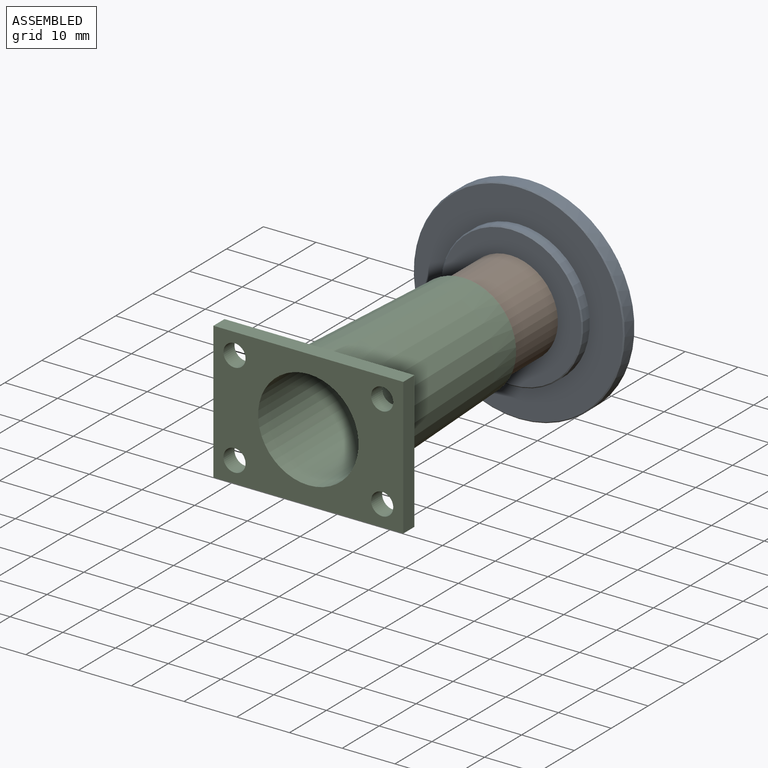
[diagram: assembled view]
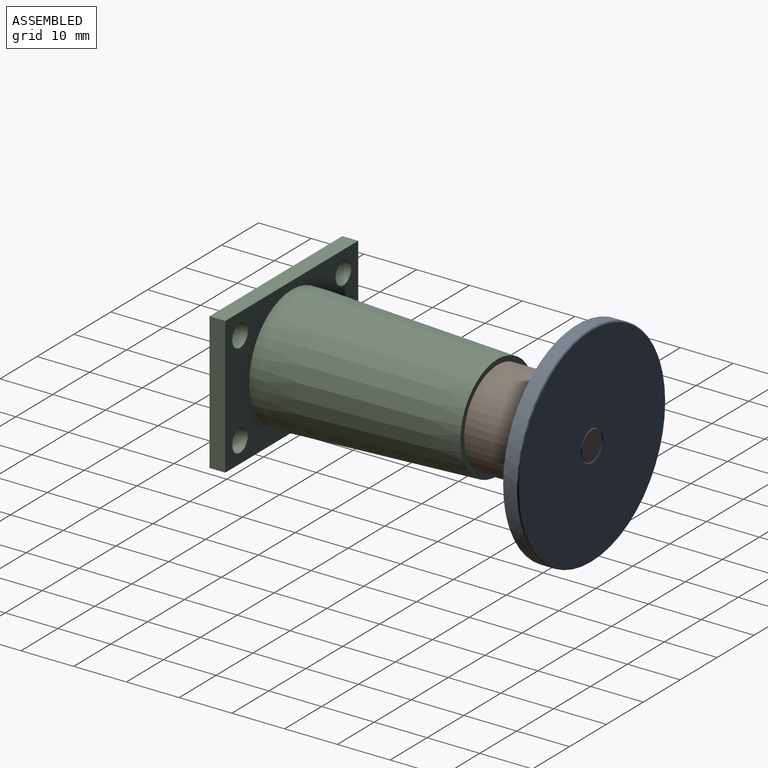
[diagram: assembled view, second angle]
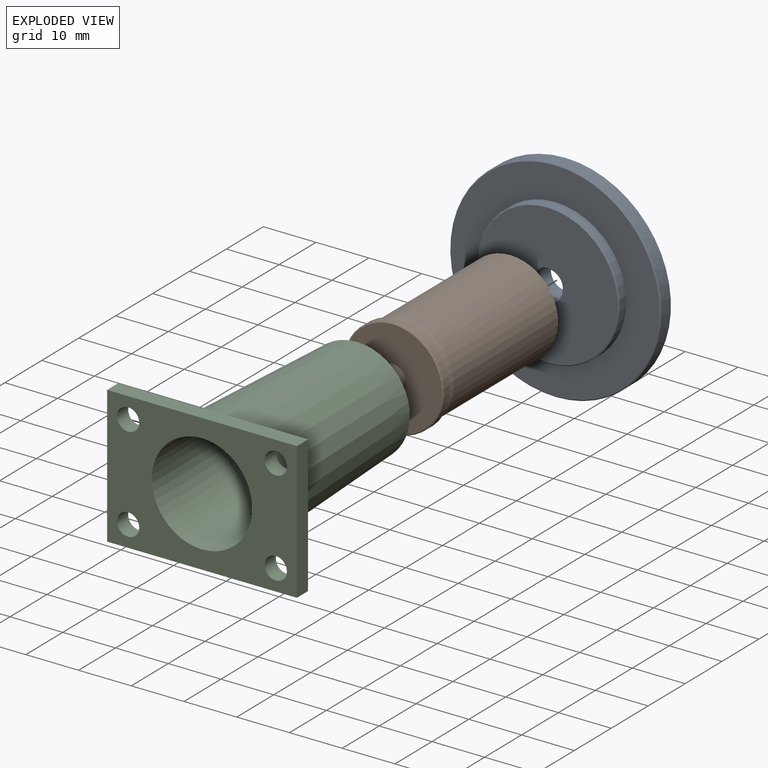
[diagram: exploded view]
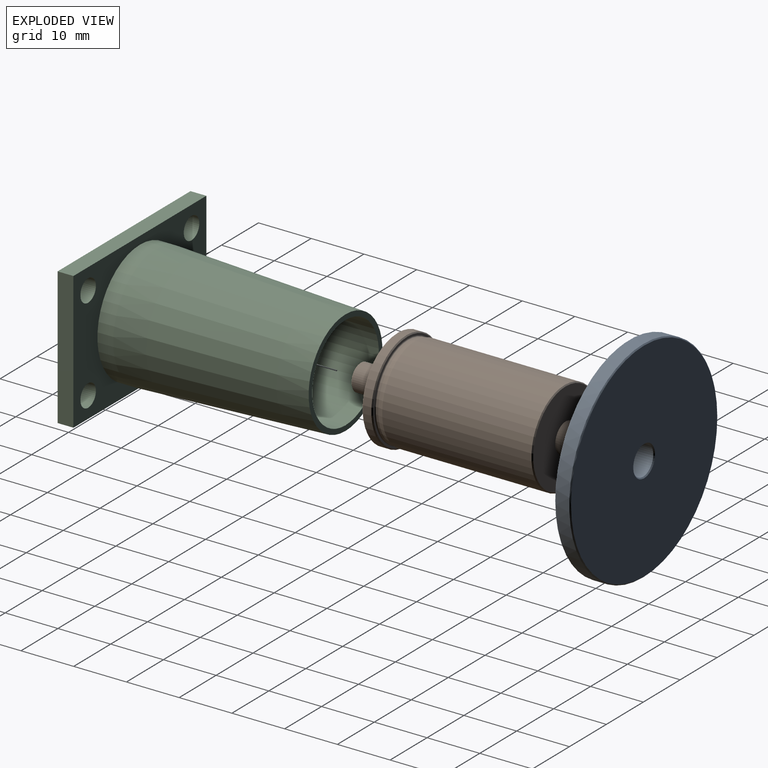
[diagram: exploded view, second angle]
ASSEMBLY  parts=3 mates=2
PART A: 11 faces, bbox 40x5x40 mm
  f0: plane 26.6x26.6mm, normal (0,-1,0), area 528.4mm2, adj f6,f10
  f1: cylinder r=2.75mm len=5.5mm, axis (0,-1,0), area 79.5mm2, adj f9,f10
  f2: plane 39.6x39.6mm, normal (0,1,0), area 1204.3mm2, adj f8,f9
  f3: cylinder r=20mm len=40mm, axis (0,-1,0), area 326.7mm2, adj f7,f8
  f4: plane 39.6x39.6mm, normal (0,-1,0), area 659.1mm2, adj f5,f7
  f5: cylinder r=13.5mm len=27mm, axis (0,-1,0), area 152.7mm2, adj f4,f6
  f6: cone r=13.3mm half-angle=45deg, axis (0,1,0), area 23.8mm2, adj f0,f5
  f7: cone r=19.8mm half-angle=45deg, axis (0,1,0), area 35.4mm2, adj f3,f4
  f8: cone r=20mm half-angle=45deg, axis (0,-1,0), area 35.4mm2, adj f2,f3
  f9: cone r=2.95mm half-angle=45deg, axis (0,1,0), area 5.1mm2, adj f1,f2
  f10: cone r=2.75mm half-angle=45deg, axis (0,-1,0), area 5.1mm2, adj f0,f1
PART B: 19 faces, bbox 19.7x44x19.7 mm
  f0: cylinder r=2.5mm len=6.8mm, axis (0,-1,0), area 106.8mm2, adj f12,f18
  f1: plane 4.6x4.6mm, normal (0,-1,0), area 16.6mm2, adj f18
  f2: plane 5.4x5.4mm, normal (0,1,0), area 22.9mm2, adj f14
  f3: cylinder r=3mm len=6mm, axis (0,-1,0), area 69.7mm2, adj f4,f14
  f4: cone r=2.81mm half-angle=15deg, axis (0,1,0), area 13.5mm2, adj f3,f5
  f5: cylinder r=2.81mm len=5.62mm, axis (0,-1,0), area 5mm2, adj f4,f6
  f6: plane 17.6x17.6mm, normal (0,1,0), area 218.5mm2, adj f5,f15
  f7: cylinder r=9mm len=28.3mm, axis (0,-1,0), area 1600.3mm2, adj f8,f15
  f8: cone r=9mm half-angle=15deg, axis (0,1,0), area 53.9mm2, adj f7,f9
  f9: cylinder r=8.75mm len=17.5mm, axis (0,-1,0), area 20.2mm2, adj f8,f13
  f10: plane 18.6x18.6mm, normal (0,1,0), area 20.1mm2, adj f13,f17
  f11: cylinder r=9.5mm len=19mm, axis (0,-1,0), area 95.5mm2, adj f16,f17
  f12: plane 18.6x18.6mm, normal (0,-1,0), area 252.1mm2, adj f0,f16
  f13: torus R=8.95mm, axis (0,1,0), area 17.4mm2, adj f9,f10
  f14: cone r=3mm half-angle=45deg, axis (0,-1,0), area 7.6mm2, adj f2,f3
  f15: cone r=9mm half-angle=45deg, axis (0,-1,0), area 15.8mm2, adj f6,f7
  f16: cone r=9.3mm half-angle=45deg, axis (0,1,0), area 16.7mm2, adj f11,f12
  f17: cone r=9.5mm half-angle=45deg, axis (0,-1,0), area 16.7mm2, adj f10,f11
  f18: cone r=2.3mm half-angle=45deg, axis (0,1,0), area 4.3mm2, adj f0,f1
PART C: 16 faces, bbox 36x42x26 mm
  f0: cylinder r=9.53mm len=26mm, axis (0,-1,0), area 1556mm2, adj f1,f10
  f1: plane 19.05x19.05mm, normal (0,-1,0), area 29.1mm2, adj f0,f2
  f2: cylinder r=9.03mm len=18.05mm, axis (0,-1,0), area 907.3mm2, adj f1,f3
  f3: plane 20x20mm, normal (0,1,0), area 58.3mm2, adj f2,f4
  f4: cone r=10mm half-angle=2.4deg, axis (0,-1,0), area 2433.7mm2, adj f3,f5
  f5: cylinder r=11.5mm len=23mm, axis (0,-1,0), area 216.8mm2, adj f4,f11
  f6: plane 26x3mm, normal (1,0,0), area 78mm2, adj f7,f9,f10,f11
  f7: plane 36x3mm, normal (0,0,1), area 108mm2, adj f6,f8,f10,f11
  f8: plane 26x3mm, normal (-1,0,0), area 78mm2, adj f7,f9,f10,f11
  f9: plane 36x3mm, normal (0,0,-1), area 108mm2, adj f6,f8,f10,f11
  f10: plane 36x26mm, normal (0,-1,0), area 595.6mm2, adj f0,f6,f7,f8,f9,f12,f13,f14
  f11: plane 36x26mm, normal (0,1,0), area 465.1mm2, adj f5,f6,f7,f8,f9,f12,f13,f14
  f12: cylinder r=2.1mm len=4.2mm, axis (0,-1,0), area 39.6mm2, adj f10,f11
  f13: cylinder r=2.1mm len=4.2mm, axis (0,-1,0), area 39.6mm2, adj f10,f11
  f14: cylinder r=2.1mm len=4.2mm, axis (0,-1,0), area 39.6mm2, adj f10,f11
  f15: cylinder r=2.1mm len=4.2mm, axis (0,-1,0), area 39.6mm2, adj f10,f11
PLACE A t=(34.65,10.54,26.15)mm
PLACE B t=(34.65,-28.46,26.15)mm
PLACE C t=(34.65,-44.41,26.15)mm
MATE fastened A.f1 <-> B.f0  axis (0,-1,0) through (34.65,10.54,26.15)mm
MATE slider C.f0 <-> B.f0  axis (0,-1,0) through (34.65,-18.41,26.15)mm
